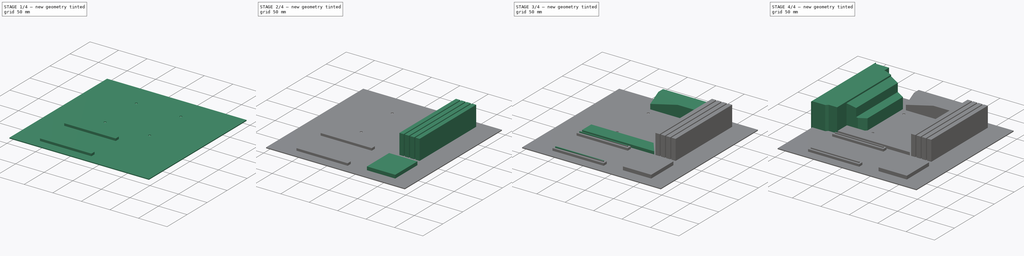
[diagram: build sequence overview — one tinted view per stage of 4, left to right]
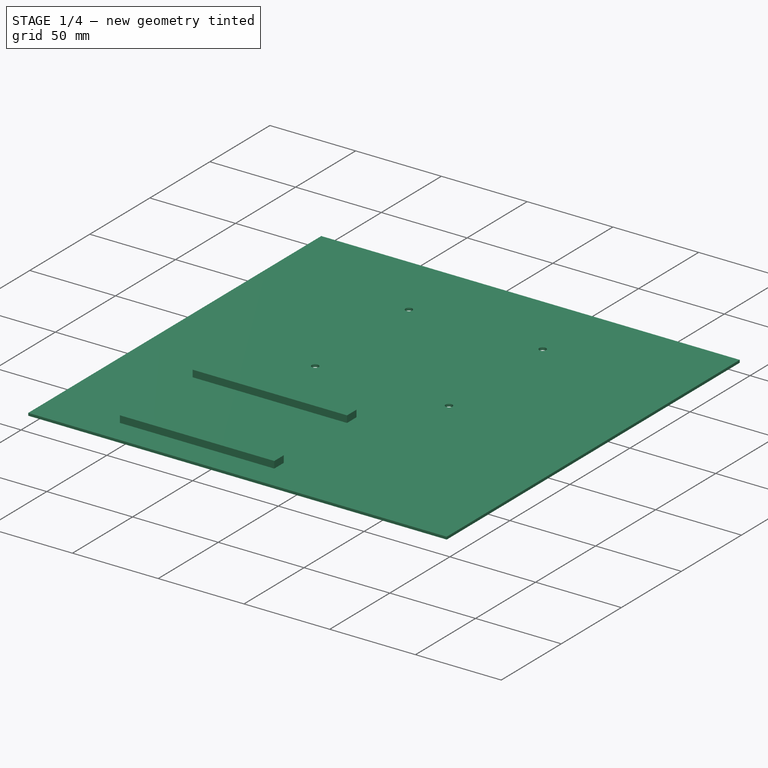
[diagram: stage 1 of 4 — iso view after this stage's code; geometry added in this stage tinted green]
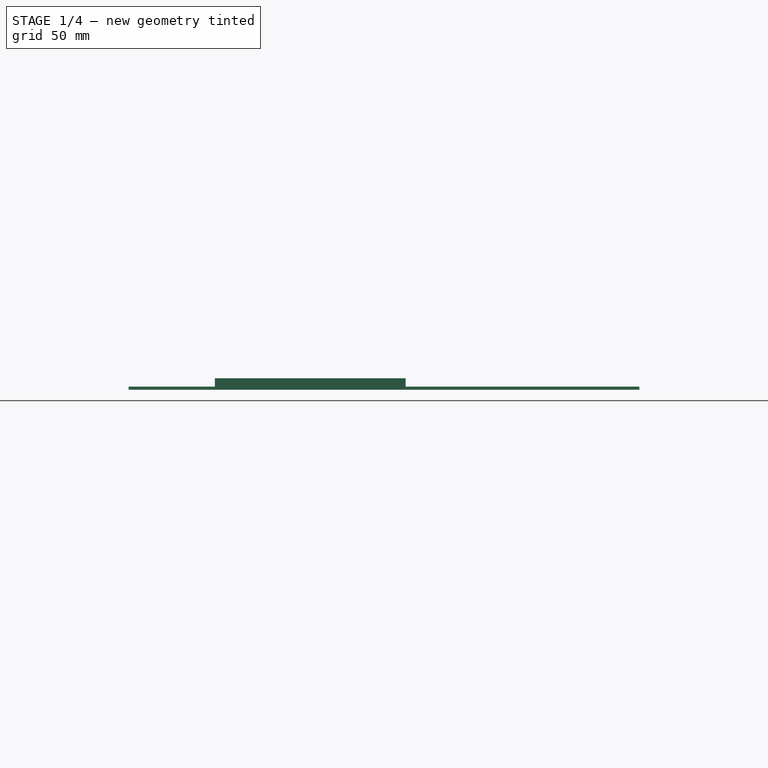
[diagram: stage 1 of 4 — front view after this stage's code; geometry added in this stage tinted green]
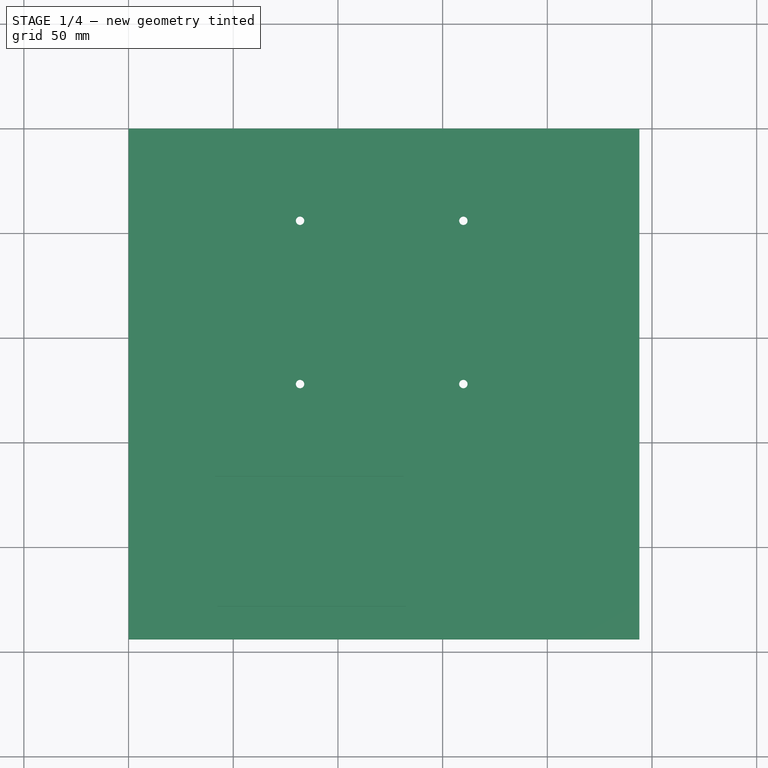
[diagram: stage 1 of 4 — top view after this stage's code; geometry added in this stage tinted green]
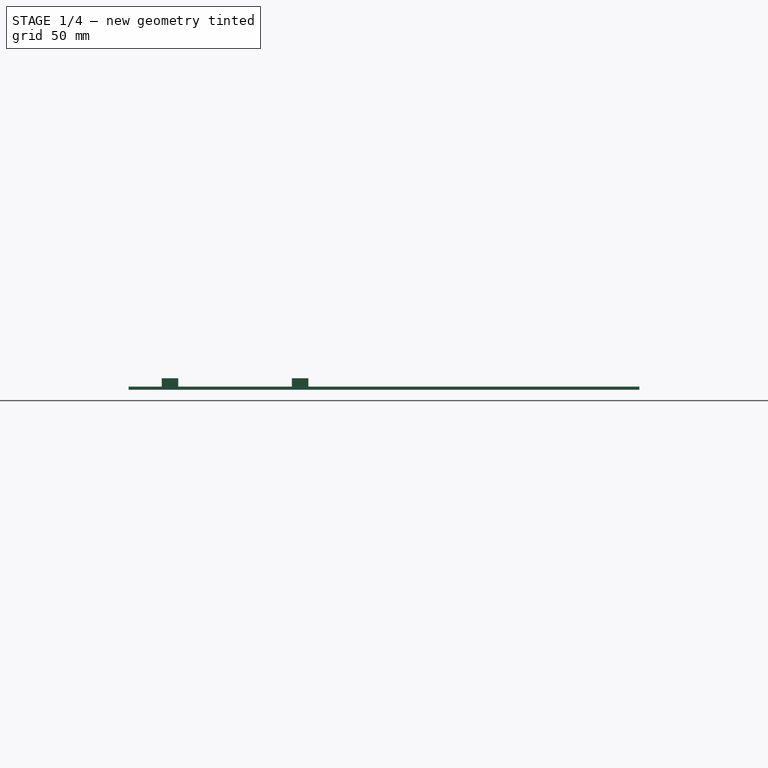
[diagram: stage 1 of 4 — right view after this stage's code; geometry added in this stage tinted green]
FCSTD DOCUMENT  (FreeCAD 0.21R33771 (Git))
Label: mb-borad
License: All rights reserved
LicenseURL: http://en.wikipedia.org/wiki/All_rights_reserved
objects: Part::Feature×22, Sketcher::SketchObject×12, PartDesign::Pad×9, PartDesign::Pocket×3, PartDesign::Body×2, App::Part×2, PartDesign::LinearPattern×1, PartDesign::Plane×1
note: 62 computed .brp shape members not serialized (recipe doc carries the construction recipe); baked Part::Feature solids carry a one-line shape summary decoded from their .brp

FEATURE [Sketcher::SketchObject] Sketch
  FullyConstrained = true
  MapMode = 5
  Support = -> [XY_Plane]
  sketch-geometry (4):
    g0: LineSegment StartX=0 StartY=0 StartZ=0 EndX=244 EndY=0 EndZ=0
    g1: LineSegment StartX=244 StartY=0 StartZ=0 EndX=244 EndY=-244 EndZ=0
    g2: LineSegment StartX=244 StartY=-244 StartZ=0 EndX=0 EndY=-244 EndZ=0
    g3: LineSegment StartX=0 StartY=-244 StartZ=0 EndX=0 EndY=0 EndZ=0
  constraints (11):
    c: Coincident(g0,g1)
    c: Coincident(g1,g2)
    c: Coincident(g2,g3)
    c: Coincident(g3,g0)
    c: Horizontal(g0)
    c: Horizontal(g2)
    c: Vertical(g1)
    c: Vertical(g3)
    c: Coincident(g0,g-1)
    c: Distance(g3) = 244
    c: Distance(g0) = 244
FEATURE [PartDesign::Pad] Pad
  Direction = (0,0,1)
  Length = 1.5
  Length2 = 10
  Profile = -> Sketch
  ReferenceAxis = -> Sketch [N_Axis]
  Type = 0
FEATURE [Sketcher::SketchObject] Sketch001
  FullyConstrained = true
  MapMode = 5
  Placement = pos=(0,0,1.5) rot=(0,0,1;0rad)
  Support = -> [Pad]
  sketch-geometry (8):
    g0: LineSegment StartX=131.25 StartY=-158.15 StartZ=0 EndX=41.25 EndY=-158.15 EndZ=0
    g1: LineSegment StartX=41.25 StartY=-158.15 StartZ=0 EndX=41.25 EndY=-166 EndZ=0
    g2: LineSegment StartX=41.25 StartY=-166 StartZ=0 EndX=131.25 EndY=-166 EndZ=0
    g3: LineSegment StartX=131.25 StartY=-166 StartZ=0 EndX=131.25 EndY=-158.15 EndZ=0
    g4: LineSegment StartX=42.35 StartY=-220.3 StartZ=0 EndX=132.35 EndY=-220.3 EndZ=0
    g5: LineSegment StartX=132.35 StartY=-220.3 StartZ=0 EndX=132.35 EndY=-228.15 EndZ=0
    g6: LineSegment StartX=132.35 StartY=-228.15 StartZ=0 EndX=42.35 EndY=-228.15 EndZ=0
    g7: LineSegment StartX=42.35 StartY=-228.15 StartZ=0 EndX=42.35 EndY=-220.3 EndZ=0
  constraints (24):
    c: Coincident(g0,g1)
    c: Coincident(g1,g2)
    c: Coincident(g2,g3)
    c: Coincident(g3,g0)
    c: Horizontal(g0)
    c: Horizontal(g2)
    c: Vertical(g1)
    c: Vertical(g3)
    c: DistanceX(g-1,g0) = 41.25
    c: DistanceY(g1,g-1) = 166
    c: DistanceY(g0,g-1) = 158.15
    c: DistanceX(g2,g2) = 90
    c: Coincident(g4,g5)
    c: Coincident(g5,g6)
    c: Coincident(g6,g7)
    c: Coincident(g7,g4)
    c: Horizontal(g4)
    c: Horizontal(g6)
    c: Vertical(g5)
    c: Vertical(g7)
    c: Equal(g2,g4)
    c: Equal(g7,g3)
    c: DistanceY(g6,g-1) = 228.15
    c: DistanceX(g-1,g4) = 42.35
FEATURE [PartDesign::Pad] Pad001
  BaseFeature = -> Pad
  Direction = (0,0,1)
  Length = 4
  Length2 = 10
  Profile = -> Sketch001
  ReferenceAxis = -> Sketch001 [N_Axis]
  Type = 0
FEATURE [Sketcher::SketchObject] Sketch002
  FullyConstrained = true
  MapMode = 5
  Placement = pos=(0,0,1.5) rot=(0,0,1;0rad)
  Support = -> [Pad001]
  sketch-geometry (8):
    g0: LineSegment StartX=81.9 StartY=-44 StartZ=0 EndX=159.9 EndY=-44 EndZ=0
    g1: LineSegment StartX=159.9 StartY=-44 StartZ=0 EndX=159.9 EndY=-122 EndZ=0
    g2: LineSegment StartX=159.9 StartY=-122 StartZ=0 EndX=81.9 EndY=-122 EndZ=0
    g3: LineSegment StartX=81.9 StartY=-122 StartZ=0 EndX=81.9 EndY=-44 EndZ=0
    g4: Circle CenterX=81.9 CenterY=-122 CenterZ=0 NormalX=0 NormalY=0 NormalZ=1 AngleXU=0 Radius=2
    g5: Circle CenterX=159.9 CenterY=-122 CenterZ=0 NormalX=0 NormalY=0 NormalZ=1 AngleXU=0 Radius=2
    g6: Circle CenterX=159.9 CenterY=-44 CenterZ=0 NormalX=0 NormalY=0 NormalZ=1 AngleXU=0 Radius=2
    g7: Circle CenterX=81.9 CenterY=-44 CenterZ=0 NormalX=0 NormalY=0 NormalZ=1 AngleXU=0 Radius=2
  constraints (20):
    c: Coincident(g0,g1)
    c: Coincident(g1,g2)
    c: Coincident(g2,g3)
    c: Coincident(g3,g0)
    c: Horizontal(g0)
    c: Horizontal(g2)
    c: Vertical(g1)
    c: Vertical(g3)
    c: Coincident(g4,g2)
    c: Coincident(g5,g1)
    c: Coincident(g6,g0)
    c: Coincident(g7,g0)
    c: Equal(g7,g6)
    c: Equal(g4,g5)
    c: Equal(g4,g7)
    c: DistanceY(g0,g-1) = 44
    c: DistanceX(g-1,g0) = 81.9
    c: DistanceX(g-1,g0) = 159.9
    c: DistanceY(g2,g-1) = 122
    c: Diameter(g5) = 4
FEATURE [PartDesign::Pocket] Pocket
  BaseFeature = -> Pad001
  Direction = (0,0,-1)
  Length = 5
  Length2 = 5
  Profile = -> Sketch002
  ReferenceAxis = -> Sketch002 [N_Axis]
  Type = 0
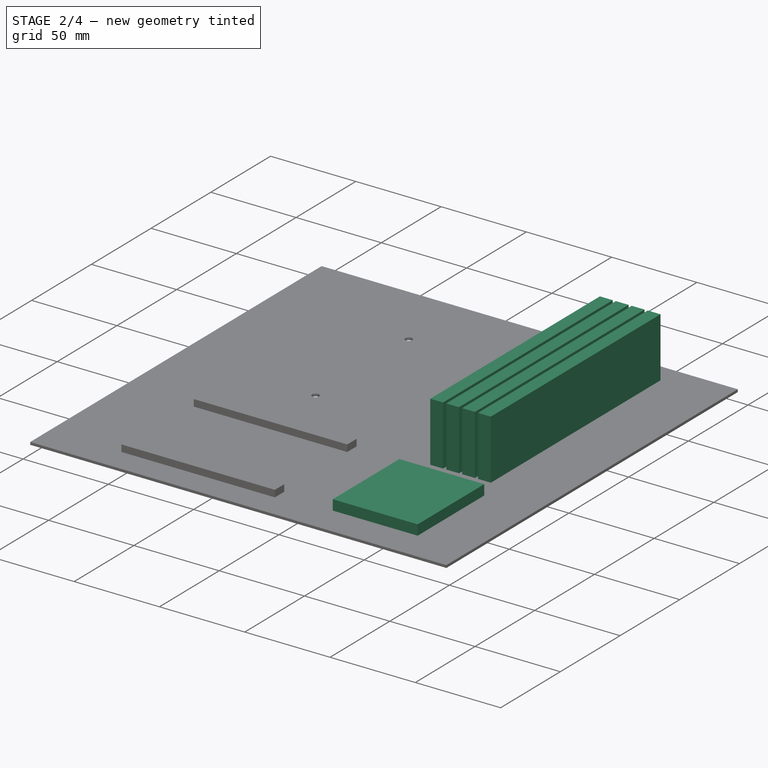
[diagram: stage 2 of 4 — iso view after this stage's code; geometry added in this stage tinted green]
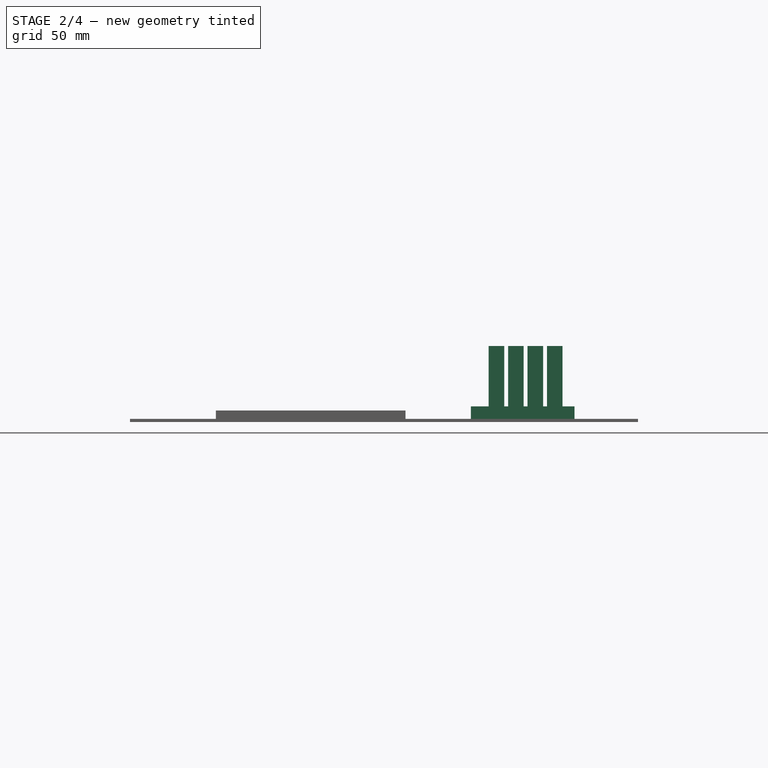
[diagram: stage 2 of 4 — front view after this stage's code; geometry added in this stage tinted green]
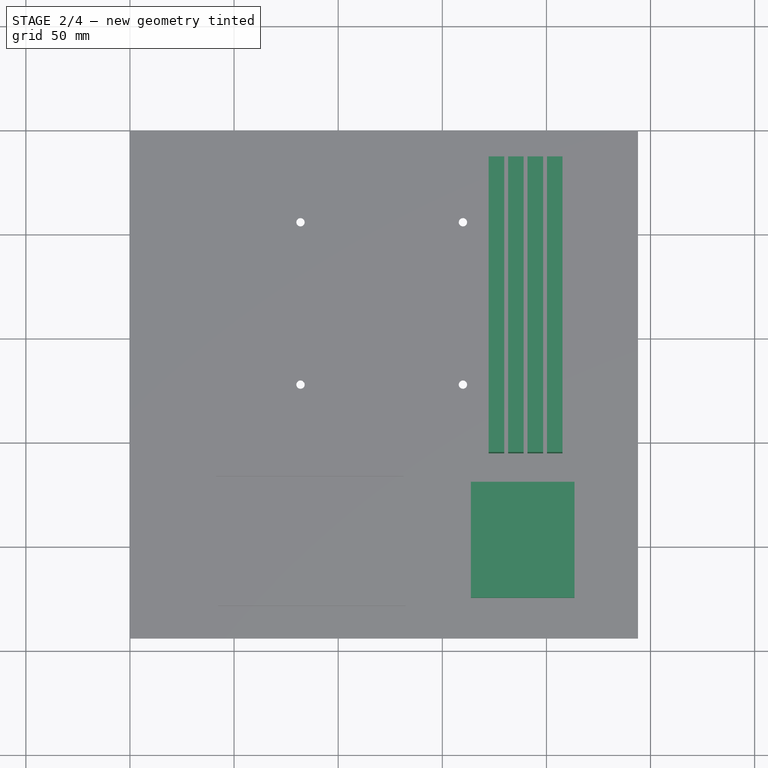
[diagram: stage 2 of 4 — top view after this stage's code; geometry added in this stage tinted green]
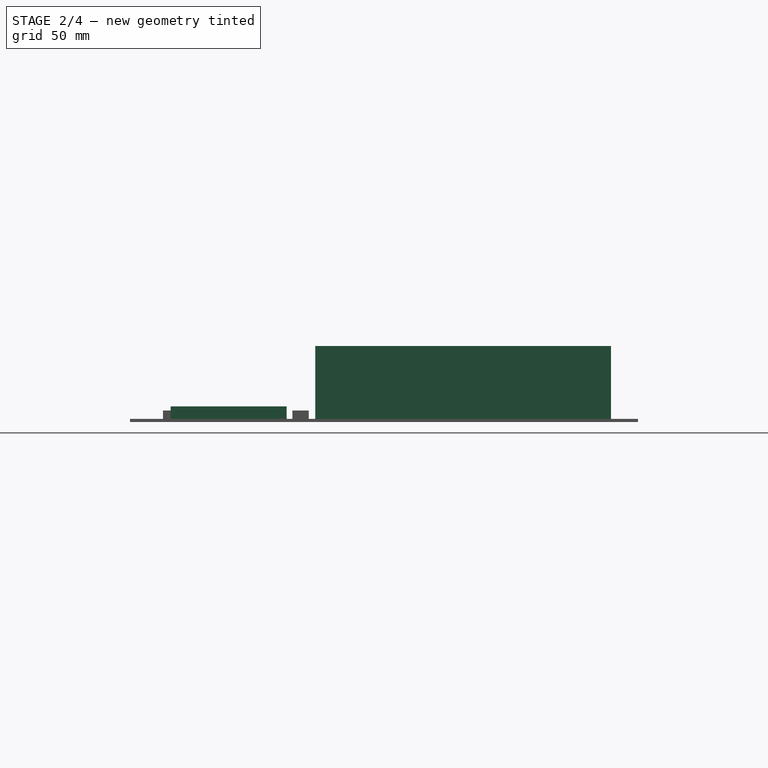
[diagram: stage 2 of 4 — right view after this stage's code; geometry added in this stage tinted green]
FEATURE [Sketcher::SketchObject] Sketch003
  FullyConstrained = true
  MapMode = 5
  Placement = pos=(0,0,1.5) rot=(0,0,1;0rad)
  Support = -> [Pocket]
  sketch-geometry (5):
    g0: LineSegment StartX=172.25 StartY=-84.5 StartZ=0 EndX=179.75 EndY=-84.5 EndZ=0
    g1: LineSegment StartX=172.25 StartY=-13 StartZ=0 EndX=179.75 EndY=-13 EndZ=0
    g2: LineSegment StartX=179.75 StartY=-13 StartZ=0 EndX=179.75 EndY=-155 EndZ=0
    g3: LineSegment StartX=179.75 StartY=-155 StartZ=0 EndX=172.25 EndY=-155 EndZ=0
    g4: LineSegment StartX=172.25 StartY=-155 StartZ=0 EndX=172.25 EndY=-13 EndZ=0
  constraints (16):
    c: Horizontal(g0)
    c: DistanceY(g0,g-1) = 84.5
    c: DistanceX(g-1,g0) = 172.25
    c: DistanceX(g0,g0) = 7.5
    c: Coincident(g1,g2)
    c: Coincident(g2,g3)
    c: Coincident(g3,g4)
    c: Coincident(g4,g1)
    c: Horizontal(g1)
    c: Horizontal(g3)
    c: Vertical(g2)
    c: Vertical(g4)
    c: PointOnObject(g0,g2)
    c: PointOnObject(g0,g4)
    c: DistanceY(g2,g2) = 142
    c: DistanceY(g1,g-1) = 13
FEATURE [PartDesign::Pad] Pad002
  BaseFeature = -> Pocket
  Direction = (0,0,1)
  Length = 35
  Length2 = 10
  Profile = -> Sketch003
  ReferenceAxis = -> Sketch003 [N_Axis]
  Type = 0
FEATURE [PartDesign::LinearPattern] LinearPattern
  BaseFeature = -> Pad002
  Direction = -> X_Axis
  Length = 28
  Occurrences = 4
  Originals = -> [Pad002]
FEATURE [Sketcher::SketchObject] Sketch004
  FullyConstrained = true
  MapMode = 5
  Placement = pos=(0,0,1.5) rot=(0,0,1;0rad)
  Support = -> [LinearPattern]
  sketch-geometry (4):
    g0: LineSegment StartX=163.75 StartY=-224.5 StartZ=0 EndX=213.5 EndY=-224.5 EndZ=0
    g1: LineSegment StartX=213.5 StartY=-224.5 StartZ=0 EndX=213.5 EndY=-168.75 EndZ=0
    g2: LineSegment StartX=213.5 StartY=-168.75 StartZ=0 EndX=163.75 EndY=-168.75 EndZ=0
    g3: LineSegment StartX=163.75 StartY=-168.75 StartZ=0 EndX=163.75 EndY=-224.5 EndZ=0
  constraints (12):
    c: Coincident(g0,g1)
    c: Coincident(g1,g2)
    c: Coincident(g2,g3)
    c: Coincident(g3,g0)
    c: Horizontal(g0)
    c: Horizontal(g2)
    c: Vertical(g1)
    c: Vertical(g3)
    c: DistanceX(g-1,g0) = 163.75
    c: DistanceX(g-1,g0) = 213.5
    c: DistanceY(g2,g-1) = 168.75
    c: DistanceY(g0,g-1) = 224.5
FEATURE [Sketcher::SketchObject] Sketch005
  FullyConstrained = true
  MapMode = 5
  Placement = pos=(0,0,5.5) rot=(0,0,1;0rad)
  Support = -> [LinearPattern]
  sketch-geometry (16):
    g0: LineSegment StartX=41.25 StartY=-158.15 StartZ=0 EndX=131.25 EndY=-158.15 EndZ=0
    g1: LineSegment StartX=131.25 StartY=-158.15 StartZ=0 EndX=131.25 EndY=-166 EndZ=0
    g2: LineSegment StartX=131.25 StartY=-166 StartZ=0 EndX=41.25 EndY=-166 EndZ=0
    g3: LineSegment StartX=41.25 StartY=-166 StartZ=0 EndX=41.25 EndY=-158.15 EndZ=0
    g4: LineSegment StartX=42.35 StartY=-220.3 StartZ=0 EndX=132.35 EndY=-220.3 EndZ=0
    g5: LineSegment StartX=132.35 StartY=-220.3 StartZ=0 EndX=132.35 EndY=-228.15 EndZ=0
    g6: LineSegment StartX=132.35 StartY=-228.15 StartZ=0 EndX=42.35 EndY=-228.15 EndZ=0
    g7: LineSegment StartX=42.35 StartY=-228.15 StartZ=0 EndX=42.35 EndY=-220.3 EndZ=0
    g8: LineSegment StartX=43.75 StartY=-161.25 StartZ=0 EndX=128.75 EndY=-161.25 EndZ=0
    g9: LineSegment StartX=128.75 StartY=-161.25 StartZ=0 EndX=128.75 EndY=-162.9 EndZ=0
    g10: LineSegment StartX=128.75 StartY=-162.9 StartZ=0 EndX=43.75 EndY=-162.9 EndZ=0
    g11: LineSegment StartX=43.75 StartY=-162.9 StartZ=0 EndX=43.75 EndY=-161.25 EndZ=0
    g12: LineSegment StartX=44.85 StartY=-223.4 StartZ=0 EndX=129.85 EndY=-223.4 EndZ=0
    g13: LineSegment StartX=129.85 StartY=-223.4 StartZ=0 EndX=129.85 EndY=-225.05 EndZ=0
    g14: LineSegment StartX=129.85 StartY=-225.05 StartZ=0 EndX=44.85 EndY=-225.05 EndZ=0
    g15: LineSegment StartX=44.85 StartY=-225.05 StartZ=0 EndX=44.85 EndY=-223.4 EndZ=0
  constraints (49):
    c: Coincident(g0,g1)
    c: Coincident(g1,g2)
    c: Coincident(g2,g3)
    c: Coincident(g3,g0)
    c: Horizontal(g0)
    c: Horizontal(g2)
    c: Vertical(g1)
    c: Vertical(g3)
    c: Coincident(g4,g5)
    c: Coincident(g5,g6)
    c: Coincident(g6,g7)
    c: Coincident(g7,g4)
    c: Horizontal(g4)
    c: Horizontal(g6)
    c: Vertical(g5)
    c: Vertical(g7)
    c: Equal(g2,g4)
    c: Equal(g7,g3)
    c: DistanceX(g0,g0) = 90
    c: DistanceX(g-1,g0) = 41.25
    c: DistanceX(g-1,g6) = 42.35
    c: DistanceY(g1,g1) = 7.85
    c: DistanceY(g4,g-1) = 220.3
    c: DistanceY(g0,g-1) = 158.15
    c: Coincident(g8,g9)
    c: Coincident(g9,g10)
    c: Coincident(g10,g11)
    c: Coincident(g11,g8)
    c: Horizontal(g8)
    c: Horizontal(g10)
    c: Vertical(g9)
    c: Vertical(g11)
    c: Coincident(g12,g13)
    c: Coincident(g13,g14)
    c: Coincident(g14,g15)
    c: Coincident(g15,g12)
    c: Horizontal(g12)
    c: Horizontal(g14)
    c: Vertical(g13)
    c: Vertical(g15)
    c: Equal(g8,g12)
    c: Equal(g13,g9)
    c: DistanceY(g13,g13) = 1.65
    c: DistanceX(g8,g8) = 85
    c: DistanceY(g3,g3) = 7.85
    c: DistanceY(g1,g9) = 3.1
    c: DistanceY(g5,g13) = 3.1
    c: DistanceX(g9,g1) = 2.5
    c: DistanceX(g13,g5) = 2.5
FEATURE [PartDesign::Pad] Pad003
  BaseFeature = -> LinearPattern
  Direction = (0,0,1)
  Length = 6
  Length2 = 10
  Profile = -> Sketch004
  ReferenceAxis = -> Sketch004 [N_Axis]
  Type = 0
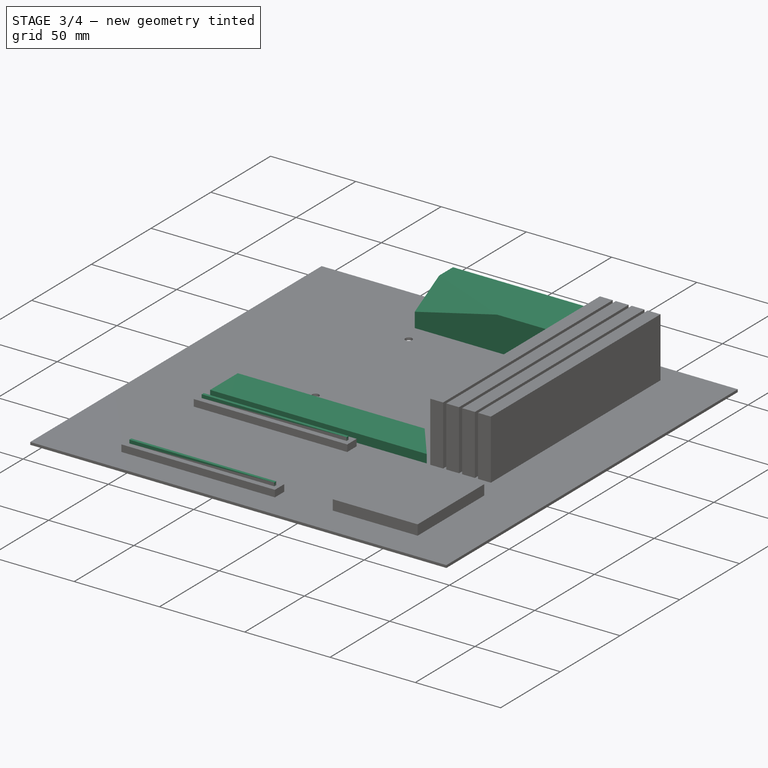
[diagram: stage 3 of 4 — iso view after this stage's code; geometry added in this stage tinted green]
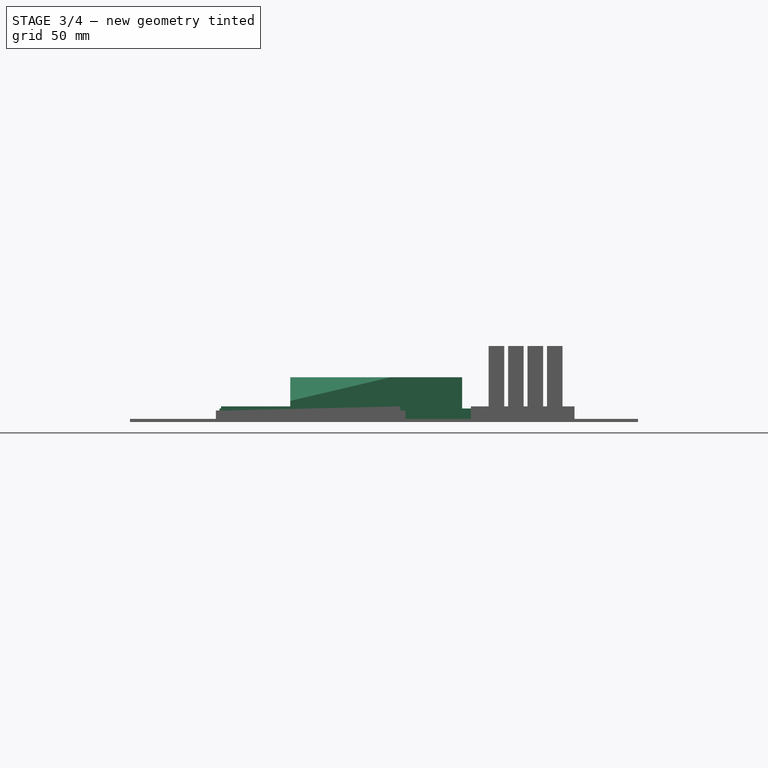
[diagram: stage 3 of 4 — front view after this stage's code; geometry added in this stage tinted green]
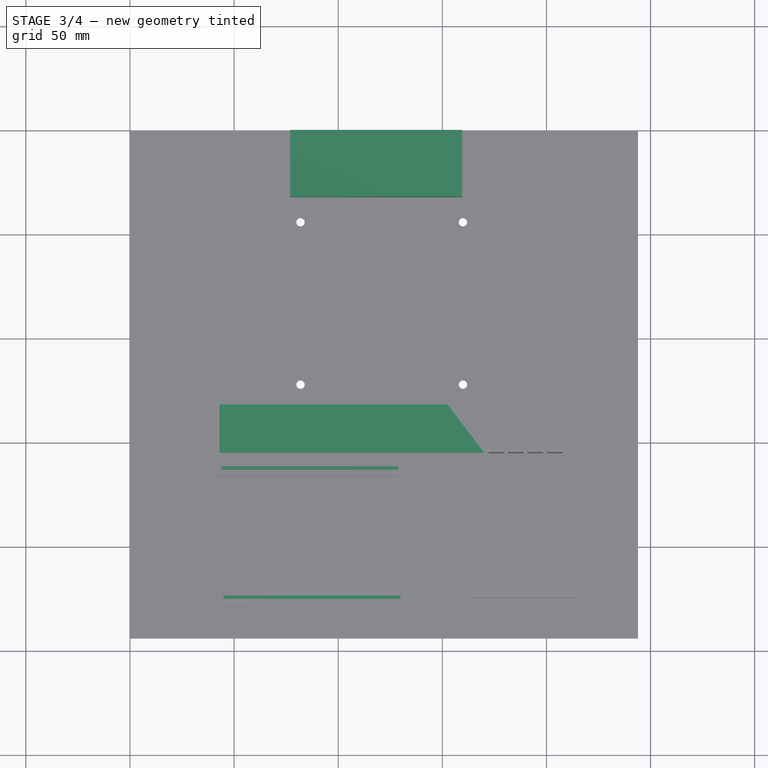
[diagram: stage 3 of 4 — top view after this stage's code; geometry added in this stage tinted green]
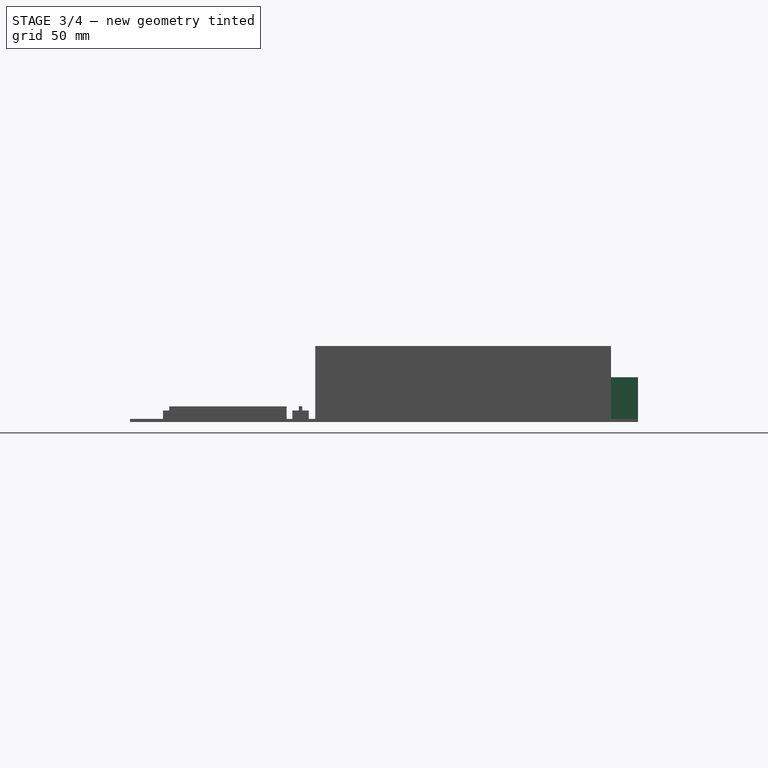
[diagram: stage 3 of 4 — right view after this stage's code; geometry added in this stage tinted green]
FEATURE [PartDesign::Pad] Pad004
  BaseFeature = -> Pad003
  Direction = (0,0,1)
  Length = 2
  Length2 = 10
  Profile = -> Sketch005
  ReferenceAxis = -> Sketch005 [N_Axis]
  Type = 0
FEATURE [PartDesign::Body] Body001  label="后面板"
  Group = -> [Sketch006,Pad005,DatumPlane,Sketch007,Pad006,Sketch008,Pocket001]
  Origin = -> Origin001
  Tip = -> Pocket001
FEATURE [Sketcher::SketchObject] Sketch009
  FullyConstrained = true
  MapMode = 5
  Placement = pos=(0,0,1.5) rot=(0,0,1;0rad)
  Support = -> [Pad004]
  sketch-geometry (4):
    g0: LineSegment StartX=43 StartY=-131.6 StartZ=0 EndX=43 EndY=-154.75 EndZ=0
    g1: LineSegment StartX=43 StartY=-154.75 StartZ=0 EndX=170 EndY=-154.75 EndZ=0
    g2: LineSegment StartX=170 StartY=-154.75 StartZ=0 EndX=152.555 EndY=-131.6 EndZ=0
    g3: LineSegment StartX=152.555 StartY=-131.6 StartZ=0 EndX=43 EndY=-131.6 EndZ=0
  constraints (12):
    c: Vertical(g0)
    c: Coincident(g0,g1)
    c: Horizontal(g1)
    c: Coincident(g2,g3)
    c: Coincident(g3,g0)
    c: Horizontal(g3)
    c: Coincident(g2,g1)
    c: DistanceY(g0,g-1) = 154.75
    c: DistanceY(g0,g-1) = 131.6
    c: DistanceX(g-1,g0) = 43
    c: DistanceX(g1,g1) = 127
    c: Angle(g2,g1) = 0.925025
FEATURE [PartDesign::Pad] Pad007
  BaseFeature = -> Pad004
  Direction = (0,0,1)
  Length = 5
  Length2 = 10
  Profile = -> Sketch009
  ReferenceAxis = -> Sketch009 [N_Axis]
  Type = 0
FEATURE [Sketcher::SketchObject] Sketch010
  FullyConstrained = true
  MapMode = 5
  Placement = pos=(0,0,1.5) rot=(0,0,1;0rad)
  Support = -> [Pad007]
  sketch-geometry (4):
    g0: LineSegment StartX=77 StartY=0 StartZ=0 EndX=159.5 EndY=0 EndZ=0
    g1: LineSegment StartX=159.5 StartY=0 StartZ=0 EndX=159.5 EndY=-32 EndZ=0
    g2: LineSegment StartX=159.5 StartY=-32 StartZ=0 EndX=77 EndY=-32 EndZ=0
    g3: LineSegment StartX=77 StartY=-32 StartZ=0 EndX=77 EndY=0 EndZ=0
  constraints (12):
    c: Coincident(g0,g1)
    c: Coincident(g1,g2)
    c: Coincident(g2,g3)
    c: Coincident(g3,g0)
    c: Horizontal(g0)
    c: Horizontal(g2)
    c: Vertical(g1)
    c: Vertical(g3)
    c: PointOnObject(g0,g-1)
    c: DistanceX(g-1,g0) = 77
    c: DistanceX(g0,g0) = 82.5
    c: DistanceY(g3,g3) = 32
FEATURE [PartDesign::Pad] Pad008
  BaseFeature = -> Pad007
  Direction = (0,0,1)
  Length = 20
  Length2 = 10
  Profile = -> Sketch010
  ReferenceAxis = -> Sketch010 [N_Axis]
  Type = 0
FEATURE [Sketcher::SketchObject] Sketch011
  FullyConstrained = false
  MapMode = 5
  Placement = pos=(0,0,21.5) rot=(0,0,1;0rad)
  Support = -> [Pad008]
  sketch-geometry (3):
    g0: LineSegment StartX=73.8544 StartY=-36.4097 StartZ=0 EndX=135.607 EndY=-36.4097 EndZ=0
    g1: LineSegment StartX=135.607 StartY=-36.4097 StartZ=0 EndX=73.8544 EndY=-10.2007 EndZ=0
    g2: LineSegment StartX=73.8544 StartY=-10.2007 StartZ=0 EndX=73.8544 EndY=-36.4097 EndZ=0
  constraints (5):
    c: Horizontal(g0)
    c: Coincident(g0,g1)
    c: Coincident(g1,g2)
    c: Coincident(g2,g0)
    c: Vertical(g2)
FEATURE [PartDesign::Pocket] Pocket002
  BaseFeature = -> Pad008
  Direction = (0,-0.9,-0.5)
  Length = 12
  Length2 = 5
  Profile = -> Sketch011
  ReferenceAxis = -> Sketch011 [N_Axis]
  Type = 0
  UseCustomVector = true
FEATURE [PartDesign::Body] Body  label="板"
  Group = -> [Sketch,Pad,Sketch001,Pad001,Sketch002,Pocket,Sketch003,Pad002,LinearPattern,Sketch004,Sketch005,Pad003,Pad004,Sketch009,Pad007,Sketch010,Pad008,Sketch011,Pocket002]
  Origin = -> Origin
  Tip = -> Pocket002
FEATURE [Part::Feature] Part__Feature022  label="BB"
  shape: bbox 9.903 x 2.985 x 2.179 mm, 6 faces (baked)
FEATURE [Part::Feature] Part__Feature023  label="BB001"
  shape: bbox 12.7 x 4.775 x 2.179 mm, 6 faces (baked)
FEATURE [Part::Feature] Part__Feature024  label="BB002"
  shape: bbox 11.37 x 6.425 x 2.179 mm, 6 faces (baked)
FEATURE [Part::Feature] Part__Feature025  label="BB003"
  shape: bbox 11.18 x 2.685 x 2.179 mm, 6 faces (baked)
FEATURE [Part::Feature] Part__Feature026  label="BB004"
  shape: bbox 6.512 x 10.77 x 2.179 mm, 6 faces (baked)
FEATURE [Part::Feature] Part__Feature027  label="BB005"
  shape: bbox 11.11 x 6.425 x 2.179 mm, 6 faces (baked)
FEATURE [Part::Feature] Part__Feature028  label="BB006"
  shape: bbox 83.57 x 21.56 x 2.179 mm, 6 faces (baked)
FEATURE [Part::Feature] Part__Feature029  label="BB007"
  shape: bbox 5.318 x 13.51 x 2.179 mm, 6 faces (baked)
FEATURE [Part::Feature] Part__Feature030  label="BB008"
  shape: bbox 84.02 x 20.23 x 2.179 mm, 6 faces (baked)
FEATURE [Part::Feature] Part__Feature031  label="BB009"
  shape: bbox 14.39 x 33 x 2.179 mm, 6 faces (baked)
FEATURE [Part::Feature] Part__Feature032  label="BB010"
  shape: bbox 6.529 x 10.97 x 2.179 mm, 6 faces (baked)
FEATURE [Part::Feature] Part__Feature034  label="BB012"
  shape: bbox 4.756 x 8.542 x 2.179 mm, 6 faces (baked)
FEATURE [Part::Feature] Part__Feature035  label="BB013"
  shape: bbox 10.25 x 2.952 x 2.179 mm, 6 faces (baked)
FEATURE [Part::Feature] Part__Feature036  label="BB014"
  shape: bbox 11.72 x 5.209 x 2.179 mm, 6 faces (baked)
FEATURE [Part::Feature] Part__Feature037  label="BB015"
  shape: bbox 10.89 x 53.79 x 2.179 mm, 6 faces (baked)
FEATURE [Part::Feature] Part__Feature038  label="BB016"
  shape: bbox 25.14 x 5.14 x 2.179 mm, 6 faces (baked)
FEATURE [Part::Feature] Part__Feature039  label="BB017"
  shape: bbox 13.62 x 4.775 x 2.179 mm, 6 faces (baked)
FEATURE [Part::Feature] Part__Feature040  label="BB018"
  shape: bbox 10.09 x 3.039 x 2.179 mm, 6 faces (baked)
FEATURE [Part::Feature] Part__Feature041  label="BB019"
  shape: bbox 30.28 x 10.14 x 2.179 mm, 6 faces (baked)
FEATURE [Part::Feature] Part__Feature042  label="BB020"
  shape: bbox 7.293 x 23.88 x 2.179 mm, 6 faces (baked)
FEATURE [Part::Feature] Part__Feature043  label="BB021"
  shape: bbox 10.07 x 2.692 x 2.179 mm, 6 faces (baked)
FEATURE [Part::Feature] Part__Feature044  label="BB022"
  shape: bbox 26.26 x 5.14 x 2.179 mm, 6 faces (baked)
FEATURE [App::Part] BB  label="插口"
  Group = -> [Part__Feature022,Part__Feature023,Part__Feature024,Part__Feature025,Part__Feature026,Part__Feature027,Part__Feature028,Part__Feature029,Part__Feature030,Part__Feature031,Part__Feature032,Part__Feature034,Part__Feature035,Part__Feature036,Part__Feature037,Part__Feature038,Part__Feature039,Part__Feature040,Part__Feature041,Part__Feature042,Part__Feature043,Part__Feature044]
  Origin = -> Origin004
  Placement = pos=(244.7,-701.7,0) rot=(0,0,1;0rad)
FEATURE [App::Part] Part  label="主板"
  Group = -> [BB,Body001,Body]
  Origin = -> Origin005
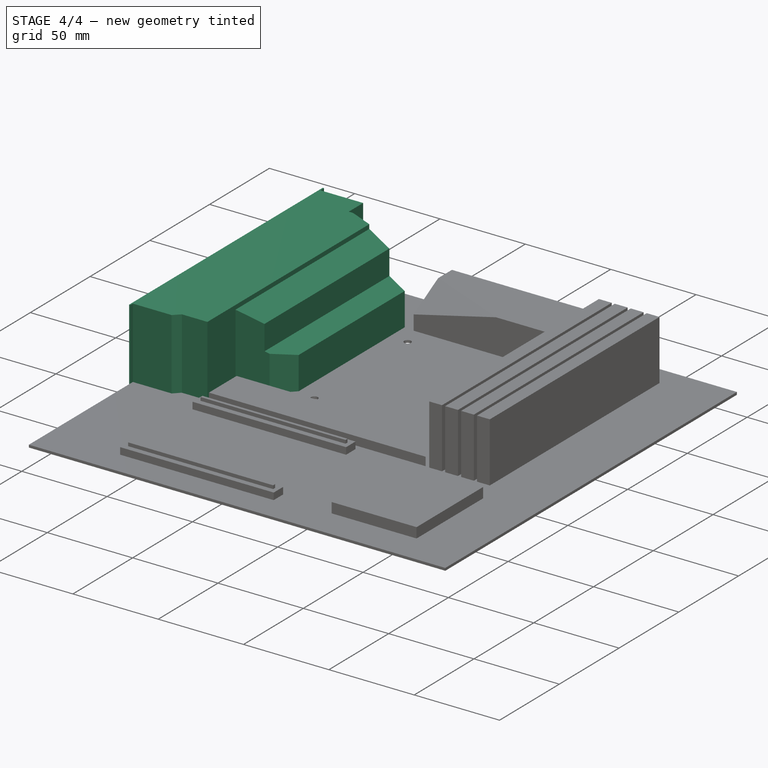
[diagram: stage 4 of 4 — iso view after this stage's code; geometry added in this stage tinted green]
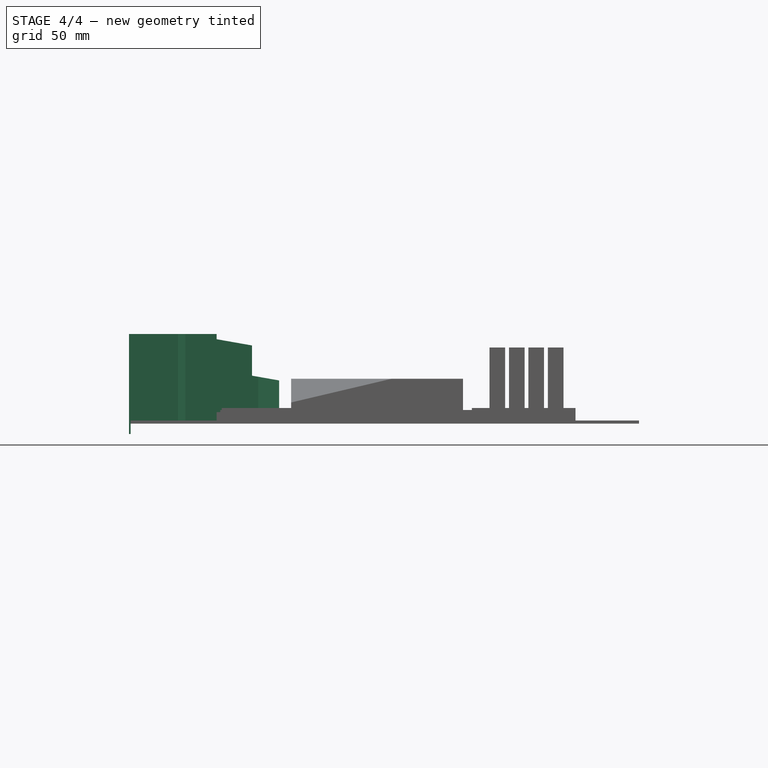
[diagram: stage 4 of 4 — front view after this stage's code; geometry added in this stage tinted green]
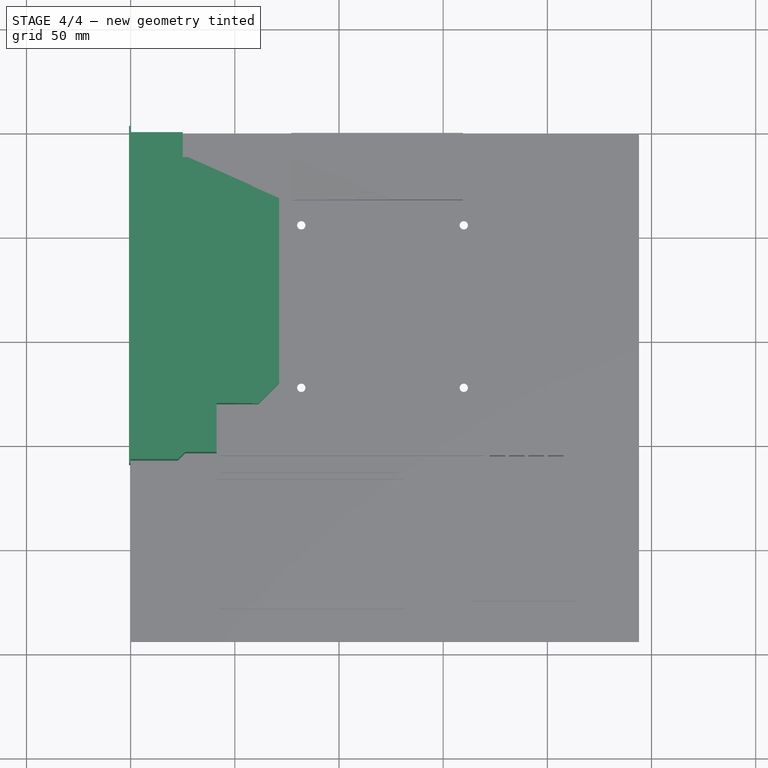
[diagram: stage 4 of 4 — top view after this stage's code; geometry added in this stage tinted green]
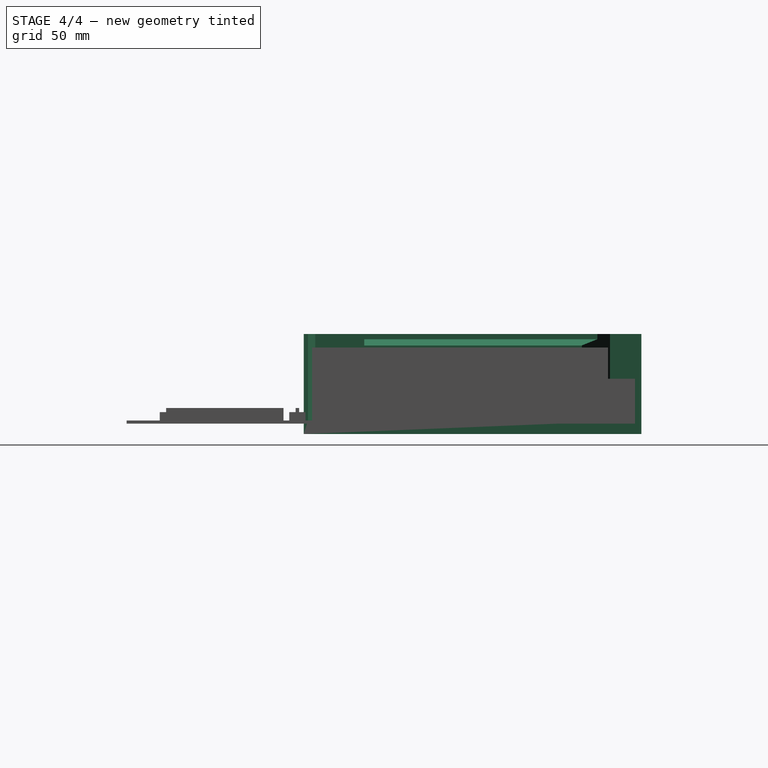
[diagram: stage 4 of 4 — right view after this stage's code; geometry added in this stage tinted green]
FEATURE [Sketcher::SketchObject] Sketch006
  FullyConstrained = true
  MapMode = 5
  Placement = pos=(0,0,0) rot=(0.57735,0.57735,0.57735;2.0944rad)
  Support = -> [YZ_Plane001]
  sketch-geometry (4):
    g0: LineSegment StartX=-159 StartY=43 StartZ=0 EndX=3 EndY=43 EndZ=0
    g1: LineSegment StartX=3 StartY=43 StartZ=0 EndX=3 EndY=-5 EndZ=0
    g2: LineSegment StartX=3 StartY=-5 StartZ=0 EndX=-159 EndY=-5 EndZ=0
    g3: LineSegment StartX=-159 StartY=-5 StartZ=0 EndX=-159 EndY=43 EndZ=0
  constraints (12):
    c: Coincident(g0,g1)
    c: Coincident(g1,g2)
    c: Coincident(g2,g3)
    c: Coincident(g3,g0)
    c: Horizontal(g0)
    c: Horizontal(g2)
    c: Vertical(g1)
    c: Vertical(g3)
    c: DistanceX(g0,g0) = 162
    c: DistanceY(g1,g1) = 48
    c: DistanceY(g-1,g1) = -5
    c: DistanceX(g1,g-1) = -3
FEATURE [PartDesign::Pad] Pad005
  Direction = (1,-2e-16,3e-16)
  Length = 0.8
  Length2 = 10
  Placement = pos=(0,0,0) rot=(0.57735,0.57735,0.57735;2.0944rad)
  Profile = -> Sketch006
  ReferenceAxis = -> Sketch006 [N_Axis]
  Reversed = true
  Type = 0
FEATURE [PartDesign::Plane] DatumPlane
  AttachmentOffset = pos=(0,0,-3) rot=(0,0,1;0rad)
  Length = 84.1802
  MapMode = 5
  Placement = pos=(3e-16,1.3e-15,-3e-16) rot=(0.57735,0.57735,0.57735;4.18879rad)
  ResizeMode = 0
  Support = -> [Pad005]
  Width = 112.43
FEATURE [Sketcher::SketchObject] Sketch007
  FullyConstrained = true
  MapMode = 5
  Placement = pos=(3e-16,1.3e-15,-3e-16) rot=(0.57735,0.57735,0.57735;4.18879rad)
  Support = -> [DatumPlane]
  sketch-geometry (8):
    g0: LineSegment StartX=1.5 StartY=0 StartZ=0 EndX=43 EndY=0 EndZ=0
    g1: LineSegment StartX=43 StartY=0 StartZ=0 EndX=43 EndY=41.25 EndZ=0
    g2: LineSegment StartX=20.7077 StartY=71.25 StartZ=0 EndX=1.5 EndY=71.25 EndZ=0
    g3: LineSegment StartX=1.5 StartY=71.25 StartZ=0 EndX=1.5 EndY=0 EndZ=0
    g4: LineSegment StartX=20.7077 StartY=71.25 StartZ=0 EndX=23 EndY=58.25 EndZ=0
    g5: LineSegment StartX=23 StartY=58.25 StartZ=0 EndX=37.5024 EndY=58.25 EndZ=0
    g6: LineSegment StartX=37.5024 StartY=58.25 StartZ=0 EndX=40.5 EndY=41.25 EndZ=0
    g7: LineSegment StartX=40.5 StartY=41.25 StartZ=0 EndX=43 EndY=41.25 EndZ=0
  constraints (24):
    c: PointOnObject(g0,g-1)
    c: PointOnObject(g0,g-1)
    c: Coincident(g0,g1)
    c: Vertical(g1)
    c: Horizontal(g2)
    c: Coincident(g2,g3)
    c: Coincident(g3,g0)
    c: Vertical(g3)
    c: Distance(g0) = 41.5
    c: DistanceX(g-1,g0) = 1.5
    c: DistanceY(g1,g1) = 41.25
    c: Coincident(g4,g2)
    c: Coincident(g5,g4)
    c: Horizontal(g5)
    c: Coincident(g6,g5)
    c: Coincident(g7,g6)
    c: Coincident(g7,g1)
    c: Horizontal(g7)
    c: DistanceX(g7,g7) = 2.5
    c: DistanceY(g6,g2) = 30
    c: Angle(g5,g4) = 1.74533
    c: DistanceX(g4,g1) = 20
    c: DistanceY(g1,g4) = 17
    c: Angle(g7,g6) = 1.74533
FEATURE [PartDesign::Pad] Pad006
  BaseFeature = -> Pad005
  Direction = (4e-16,1,-2e-16)
  Length = 157
  Length2 = 10
  Placement = pos=(0,0,0) rot=(0.57735,0.57735,0.57735;2.0944rad)
  Profile = -> Sketch007
  ReferenceAxis = -> Sketch007 [N_Axis]
  Reversed = true
  Type = 0
FEATURE [Sketcher::SketchObject] Sketch008
  FullyConstrained = true
  MapMode = 5
  Placement = pos=(-9.5e-15,1.68e-14,43) rot=(0,0,-1;1.5708rad)
  Support = -> [Pad006]
  sketch-geometry (12):
    g0: LineSegment StartX=0 StartY=25 StartZ=0 EndX=12 EndY=25 EndZ=0
    g1: LineSegment StartX=12 StartY=27.5 StartZ=0 EndX=31.5 EndY=71.75 EndZ=0
    g2: LineSegment StartX=31.5 StartY=71.75 StartZ=0 EndX=0 EndY=71.75 EndZ=0
    g3: LineSegment StartX=0 StartY=25 StartZ=0 EndX=0 EndY=71.75 EndZ=0
    g4: LineSegment StartX=12 StartY=25 StartZ=0 EndX=12 EndY=27.5 EndZ=0
    g5: LineSegment StartX=157 StartY=22.75 StartZ=0 EndX=157 EndY=71.25 EndZ=0
    g6: LineSegment StartX=157 StartY=71.25 StartZ=0 EndX=120 EndY=71.25 EndZ=0
    g7: LineSegment StartX=120 StartY=71.25 StartZ=0 EndX=130 EndY=61.25 EndZ=0
    g8: LineSegment StartX=130 StartY=61.25 StartZ=0 EndX=130 EndY=41.25 EndZ=0
    g9: LineSegment StartX=130 StartY=41.25 StartZ=0 EndX=153.5 EndY=41.25 EndZ=0
    g10: LineSegment StartX=153.5 StartY=41.25 StartZ=0 EndX=153.5 EndY=26.25 EndZ=0
    g11: LineSegment StartX=153.5 StartY=26.25 StartZ=0 EndX=157 EndY=22.75 EndZ=0
  constraints (36):
    c: PointOnObject(g0,g-2)
    c: Horizontal(g0)
    c: Coincident(g1,g2)
    c: PointOnObject(g2,g-2)
    c: Horizontal(g2)
    c: DistanceY(g-1,g0) = 25
    c: DistanceX(g0,g0) = 12
    c: DistanceY(g0,g1) = 2.5
    c: DistanceX(g-1,g1) = 31.5
    c: Coincident(g3,g0)
    c: Coincident(g3,g2)
    c: DistanceY(g-1,g1) = 71.75
    c: Coincident(g4,g0)
    c: Coincident(g4,g1)
    c: Vertical(g4)
    c: Vertical(g5)
    c: Coincident(g5,g6)
    c: Horizontal(g6)
    c: Coincident(g6,g7)
    c: Coincident(g7,g8)
    c: Vertical(g8)
    c: Coincident(g8,g9)
    c: Horizontal(g9)
    c: Coincident(g9,g10)
    c: Vertical(g10)
    c: Coincident(g10,g11)
    c: Coincident(g11,g5)
    c: DistanceY(g-1,g9) = 41.25
    c: DistanceX(g-1,g5) = 157
    c: Distance(g10,g5) = 3.5
    c: Angle(g11,g10) = 2.35619
    c: Angle(g7,g8) = 2.35619
    c: DistanceY(g-1,g5) = 71.25
    c: DistanceY(g10,g10) = 15
    c: DistanceX(g-1,g7) = 130
    c: DistanceY(g8,g8) = 20
FEATURE [PartDesign::Pocket] Pocket001
  BaseFeature = -> Pad006
  Direction = (3e-16,-5e-16,-1)
  Length = 41.5
  Length2 = 5
  Placement = pos=(0,0,0) rot=(0.57735,0.57735,0.57735;2.0944rad)
  Profile = -> Sketch008
  ReferenceAxis = -> Sketch008 [N_Axis]
  Type = 0
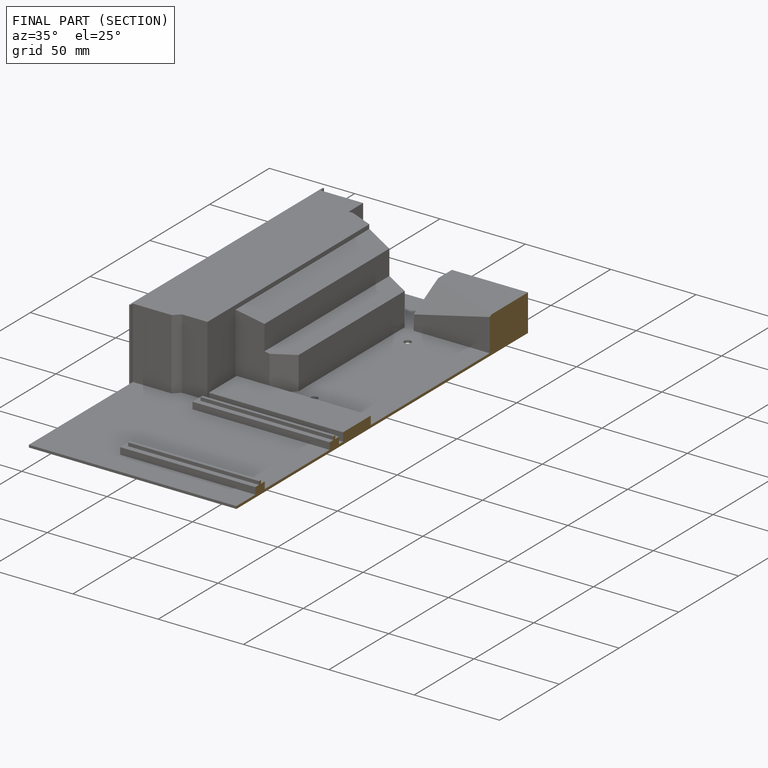
[diagram: finished part — half-section view (interior)]
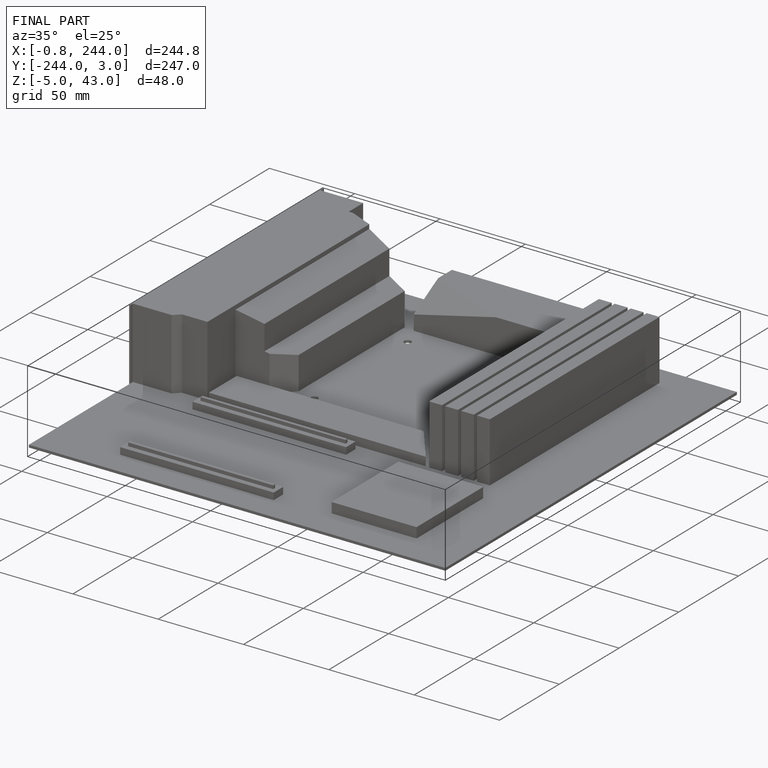
[diagram: finished part — iso view with bounding-box wireframe]
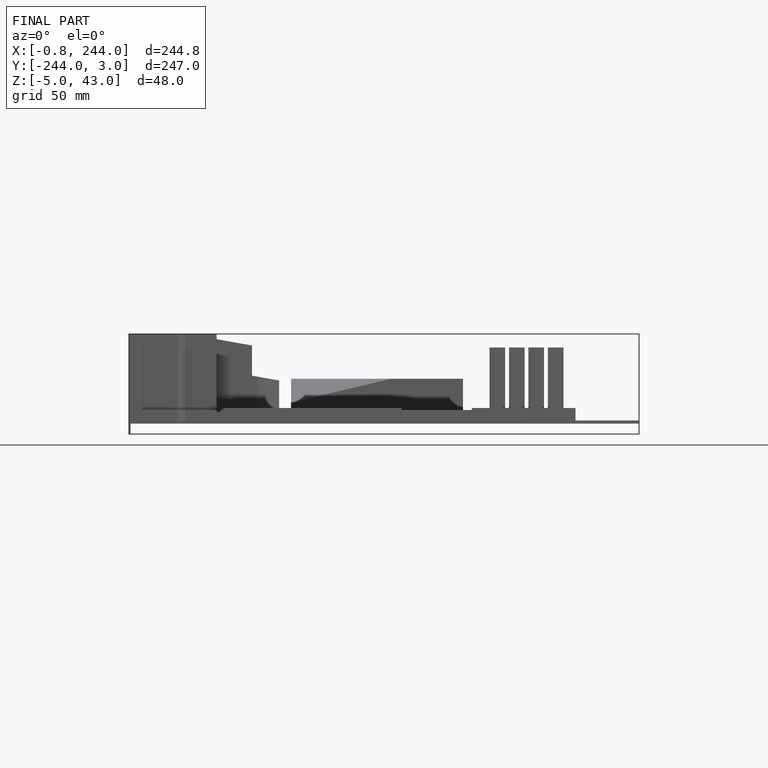
[diagram: finished part — front view with bounding-box wireframe]
